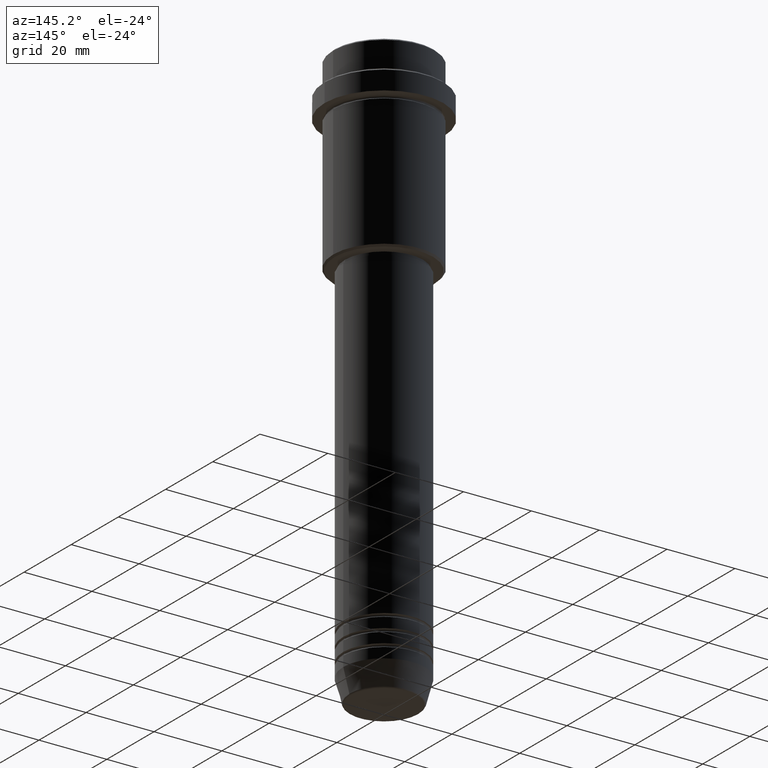
[diagram: clean part render]
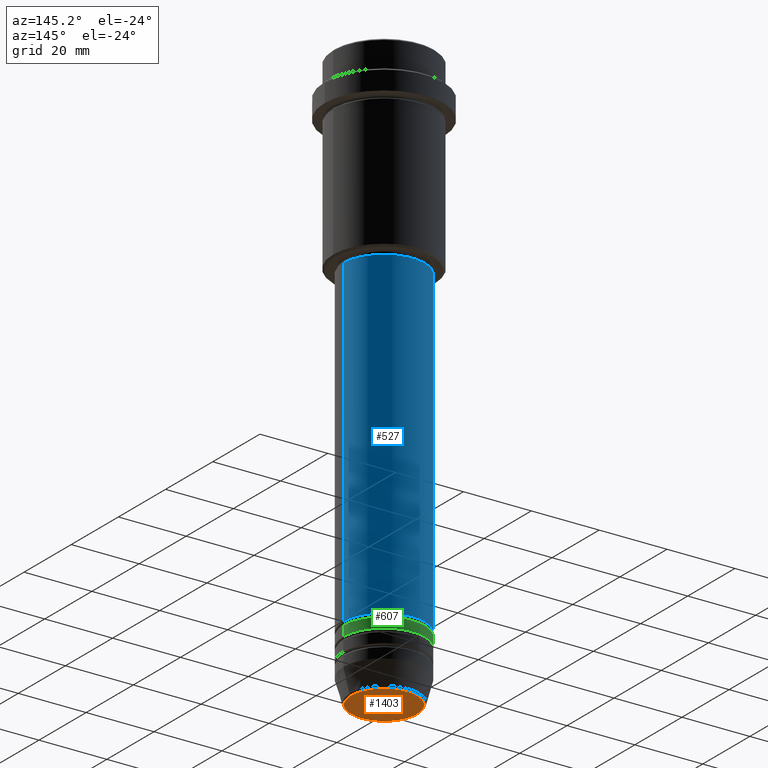
[diagram: same view with three faces highlighted in distinct colors, each labeled with its STEP entity id]
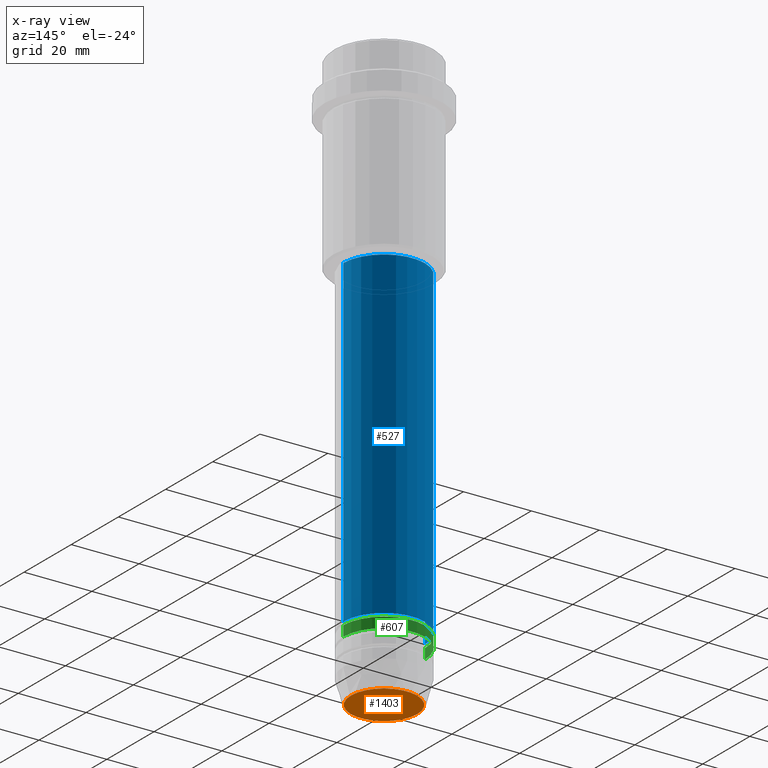
[diagram: x-ray of the same camera — body ghosted, the three highlighted faces saturated]
A machine part, auxiliary view with three faces highlighted in distinct colors.
The next image is the same camera in x-ray (body ghosted, the three faces saturated) — at least one of them is partly hidden behind the body in this view.
Their STEP definitions:

[orange] entity #1403 — the highlighted planar face has unit normal (0, -0, 1).
#47 = AXIS2_PLACEMENT_3D ( 'NONE', #999, #902, #896 ) ;
#74 = CARTESIAN_POINT ( 'NONE',  ( 9.740692158992658278, 0.000000000000000000, -169.9999999999999716 ) ) ;
#105 = CARTESIAN_POINT ( 'NONE',  ( 0.000000000000000000, 0.000000000000000000, -169.9999999999999716 ) ) ;
#113 = CIRCLE ( 'NONE', #916, 9.740692158992658278 ) ;
#275 = AXIS2_PLACEMENT_3D ( 'NONE', #105, #1300, #1276 ) ;
#337 = DIRECTION ( 'NONE',  ( 0.000000000000000000, 0.000000000000000000, -1.000000000000000000 ) ) ;
#345 = ORIENTED_EDGE ( 'NONE', *, *, #1027, .T. ) ;
#354 = DIRECTION ( 'NONE',  ( 1.000000000000000000, 0.000000000000000000, 0.000000000000000000 ) ) ;
#432 = EDGE_LOOP ( 'NONE', ( #1028, #345 ) ) ;
#896 = DIRECTION ( 'NONE',  ( 1.000000000000000000, 0.000000000000000000, 0.000000000000000000 ) ) ;
#902 = DIRECTION ( 'NONE',  ( 0.000000000000000000, -0.000000000000000000, 1.000000000000000000 ) ) ;
#916 = AXIS2_PLACEMENT_3D ( 'NONE', #1327, #337, #354 ) ;
#999 = CARTESIAN_POINT ( 'NONE',  ( 0.000000000000000000, 0.000000000000000000, -169.9999999999999716 ) ) ;
#1003 = CIRCLE ( 'NONE', #275, 9.740692158992658278 ) ;
#1027 = EDGE_CURVE ( 'NONE', #1374, #1326, #1003, .T. ) ;
#1028 = ORIENTED_EDGE ( 'NONE', *, *, #1415, .T. ) ;
#1071 = CARTESIAN_POINT ( 'NONE',  ( -9.740692158992658278, 1.222463696683474999E-15, -169.9999999999999716 ) ) ;
#1084 = PLANE ( 'NONE',  #47 ) ;
#1276 = DIRECTION ( 'NONE',  ( 1.000000000000000000, 0.000000000000000000, 0.000000000000000000 ) ) ;
#1300 = DIRECTION ( 'NONE',  ( 0.000000000000000000, 0.000000000000000000, -1.000000000000000000 ) ) ;
#1305 = FACE_OUTER_BOUND ( 'NONE', #432, .T. ) ;
#1326 = VERTEX_POINT ( 'NONE', #74 ) ;
#1327 = CARTESIAN_POINT ( 'NONE',  ( 0.000000000000000000, 0.000000000000000000, -169.9999999999999716 ) ) ;
#1374 = VERTEX_POINT ( 'NONE', #1071 ) ;
#1403 = ADVANCED_FACE ( 'NONE', ( #1305 ), #1084, .F. ) ;
#1415 = EDGE_CURVE ( 'NONE', #1326, #1374, #113, .T. ) ;

[blue] entity #527 — the highlighted cylindrical surface (partial cylindrical patch) has radius 12 mm, axis along (-0, -0, 1).
#46 = CARTESIAN_POINT ( 'NONE',  ( 11.99999999999999822, 0.000000000000000000, -55.99999999999998579 ) ) ;
#93 = EDGE_CURVE ( 'NONE', #1296, #790, #1282, .T. ) ;
#107 = AXIS2_PLACEMENT_3D ( 'NONE', #753, #866, #1172 ) ;
#228 = EDGE_CURVE ( 'NONE', #333, #578, #433, .T. ) ;
#290 = DIRECTION ( 'NONE',  ( -0.000000000000000000, -0.000000000000000000, 1.000000000000000000 ) ) ;
#333 = VERTEX_POINT ( 'NONE', #46 ) ;
#357 = EDGE_CURVE ( 'NONE', #790, #578, #1234, .T. ) ;
#433 = CIRCLE ( 'NONE', #749, 11.99999999999999822 ) ;
#458 = VECTOR ( 'NONE', #604, 1000.000000000000000 ) ;
#466 = CARTESIAN_POINT ( 'NONE',  ( -11.99999999999999822, 1.469576158976823750E-15, -55.99999999999998579 ) ) ;
#514 = EDGE_CURVE ( 'NONE', #1296, #333, #1063, .T. ) ;
#527 = ADVANCED_FACE ( 'NONE', ( #626 ), #944, .T. ) ;
#549 = VECTOR ( 'NONE', #290, 1000.000000000000000 ) ;
#578 = VERTEX_POINT ( 'NONE', #466 ) ;
#604 = DIRECTION ( 'NONE',  ( -0.000000000000000000, -0.000000000000000000, 1.000000000000000000 ) ) ;
#616 = ORIENTED_EDGE ( 'NONE', *, *, #228, .F. ) ;
#626 = FACE_OUTER_BOUND ( 'NONE', #1351, .T. ) ;
#713 = DIRECTION ( 'NONE',  ( 1.000000000000000000, 0.000000000000000000, 0.000000000000000000 ) ) ;
#749 = AXIS2_PLACEMENT_3D ( 'NONE', #788, #772, #881 ) ;
#753 = CARTESIAN_POINT ( 'NONE',  ( 0.000000000000000000, 0.000000000000000000, 0.000000000000000000 ) ) ;
#772 = DIRECTION ( 'NONE',  ( -0.000000000000000000, -0.000000000000000000, 1.000000000000000000 ) ) ;
#788 = CARTESIAN_POINT ( 'NONE',  ( 0.000000000000000000, 0.000000000000000000, -55.99999999999998579 ) ) ;
#790 = VERTEX_POINT ( 'NONE', #1278 ) ;
#821 = AXIS2_PLACEMENT_3D ( 'NONE', #822, #1244, #713 ) ;
#822 = CARTESIAN_POINT ( 'NONE',  ( 0.000000000000000000, 0.000000000000000000, -150.9999999999998579 ) ) ;
#866 = DIRECTION ( 'NONE',  ( -0.000000000000000000, -0.000000000000000000, 1.000000000000000000 ) ) ;
#873 = ORIENTED_EDGE ( 'NONE', *, *, #93, .T. ) ;
#881 = DIRECTION ( 'NONE',  ( 1.000000000000000000, 0.000000000000000000, 0.000000000000000000 ) ) ;
#921 = ORIENTED_EDGE ( 'NONE', *, *, #357, .T. ) ;
#944 = CYLINDRICAL_SURFACE ( 'NONE', #107, 12.00000000000000000 ) ;
#1063 = LINE ( 'NONE', #1395, #549 ) ;
#1118 = CARTESIAN_POINT ( 'NONE',  ( -12.00000000000000000, 1.469576158976823947E-15, 0.000000000000000000 ) ) ;
#1172 = DIRECTION ( 'NONE',  ( 1.000000000000000000, 0.000000000000000000, 0.000000000000000000 ) ) ;
#1234 = LINE ( 'NONE', #1118, #458 ) ;
#1244 = DIRECTION ( 'NONE',  ( -0.000000000000000000, -0.000000000000000000, 1.000000000000000000 ) ) ;
#1246 = ORIENTED_EDGE ( 'NONE', *, *, #514, .F. ) ;
#1278 = CARTESIAN_POINT ( 'NONE',  ( -12.00000000000000000, 1.469576158976823947E-15, -150.9999999999998579 ) ) ;
#1282 = CIRCLE ( 'NONE', #821, 12.00000000000000000 ) ;
#1296 = VERTEX_POINT ( 'NONE', #1379 ) ;
#1351 = EDGE_LOOP ( 'NONE', ( #873, #921, #616, #1246 ) ) ;
#1379 = CARTESIAN_POINT ( 'NONE',  ( 12.00000000000000000, 0.000000000000000000, -150.9999999999998579 ) ) ;
#1395 = CARTESIAN_POINT ( 'NONE',  ( 12.00000000000000000, 0.000000000000000000, 0.000000000000000000 ) ) ;

[green] entity #607 — the highlighted cylindrical surface (partial cylindrical patch) has radius 12 mm, axis along (-0, -0, 1).
#32 = DIRECTION ( 'NONE',  ( 1.000000000000000000, 0.000000000000000000, 0.000000000000000000 ) ) ;
#50 = CARTESIAN_POINT ( 'NONE',  ( 0.000000000000000000, 0.000000000000000000, 0.000000000000000000 ) ) ;
#89 = CARTESIAN_POINT ( 'NONE',  ( -12.00000000000000000, 1.469576158976823947E-15, 0.000000000000000000 ) ) ;
#94 = CARTESIAN_POINT ( 'NONE',  ( 0.000000000000000000, 0.000000000000000000, -151.9999999999998579 ) ) ;
#142 = FACE_OUTER_BOUND ( 'NONE', #719, .T. ) ;
#161 = CIRCLE ( 'NONE', #639, 12.00000000000000000 ) ;
#193 = DIRECTION ( 'NONE',  ( -0.000000000000000000, -0.000000000000000000, 1.000000000000000000 ) ) ;
#194 = CARTESIAN_POINT ( 'NONE',  ( 0.000000000000000000, 0.000000000000000000, -154.9999999999998579 ) ) ;
#223 = VECTOR ( 'NONE', #1262, 1000.000000000000000 ) ;
#246 = AXIS2_PLACEMENT_3D ( 'NONE', #94, #193, #763 ) ;
#267 = CARTESIAN_POINT ( 'NONE',  ( 12.00000000000000000, 0.000000000000000000, -154.9999999999998579 ) ) ;
#298 = DIRECTION ( 'NONE',  ( -0.000000000000000000, -0.000000000000000000, 1.000000000000000000 ) ) ;
#360 = VERTEX_POINT ( 'NONE', #267 ) ;
#367 = ORIENTED_EDGE ( 'NONE', *, *, #502, .F. ) ;
#502 = EDGE_CURVE ( 'NONE', #525, #893, #1058, .T. ) ;
#525 = VERTEX_POINT ( 'NONE', #621 ) ;
#568 = ORIENTED_EDGE ( 'NONE', *, *, #1348, .T. ) ;
#607 = ADVANCED_FACE ( 'NONE', ( #142 ), #1033, .T. ) ;
#621 = CARTESIAN_POINT ( 'NONE',  ( 12.00000000000000000, 0.000000000000000000, -151.9999999999998579 ) ) ;
#639 = AXIS2_PLACEMENT_3D ( 'NONE', #194, #298, #1048 ) ;
#687 = ORIENTED_EDGE ( 'NONE', *, *, #1315, .T. ) ;
#719 = EDGE_LOOP ( 'NONE', ( #687, #568, #367, #1066 ) ) ;
#734 = DIRECTION ( 'NONE',  ( -0.000000000000000000, -0.000000000000000000, 1.000000000000000000 ) ) ;
#763 = DIRECTION ( 'NONE',  ( 1.000000000000000000, 0.000000000000000000, 0.000000000000000000 ) ) ;
#835 = LINE ( 'NONE', #840, #223 ) ;
#840 = CARTESIAN_POINT ( 'NONE',  ( 12.00000000000000000, 0.000000000000000000, 0.000000000000000000 ) ) ;
#844 = AXIS2_PLACEMENT_3D ( 'NONE', #50, #734, #32 ) ;
#893 = VERTEX_POINT ( 'NONE', #1010 ) ;
#894 = VECTOR ( 'NONE', #1281, 1000.000000000000000 ) ;
#954 = CARTESIAN_POINT ( 'NONE',  ( -12.00000000000000000, 1.469576158976823947E-15, -154.9999999999998579 ) ) ;
#980 = EDGE_CURVE ( 'NONE', #360, #525, #835, .T. ) ;
#1010 = CARTESIAN_POINT ( 'NONE',  ( -12.00000000000000000, 1.469576158976823947E-15, -151.9999999999998579 ) ) ;
#1011 = VERTEX_POINT ( 'NONE', #954 ) ;
#1033 = CYLINDRICAL_SURFACE ( 'NONE', #844, 12.00000000000000000 ) ;
#1048 = DIRECTION ( 'NONE',  ( 1.000000000000000000, 0.000000000000000000, 0.000000000000000000 ) ) ;
#1058 = CIRCLE ( 'NONE', #246, 12.00000000000000000 ) ;
#1066 = ORIENTED_EDGE ( 'NONE', *, *, #980, .F. ) ;
#1181 = LINE ( 'NONE', #89, #894 ) ;
#1262 = DIRECTION ( 'NONE',  ( -0.000000000000000000, -0.000000000000000000, 1.000000000000000000 ) ) ;
#1281 = DIRECTION ( 'NONE',  ( -0.000000000000000000, -0.000000000000000000, 1.000000000000000000 ) ) ;
#1315 = EDGE_CURVE ( 'NONE', #360, #1011, #161, .T. ) ;
#1348 = EDGE_CURVE ( 'NONE', #1011, #893, #1181, .T. ) ;